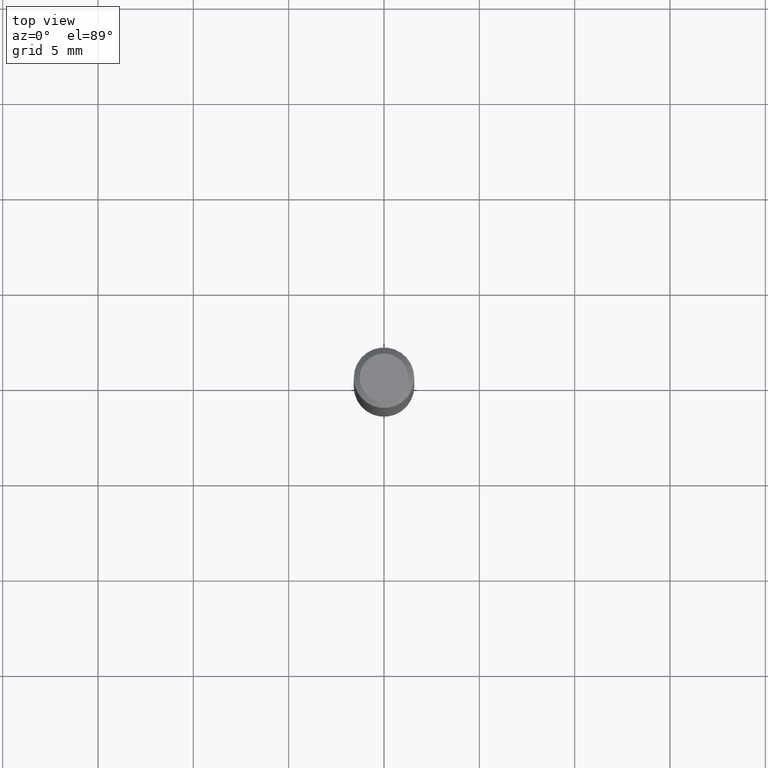
[diagram: clean part render]
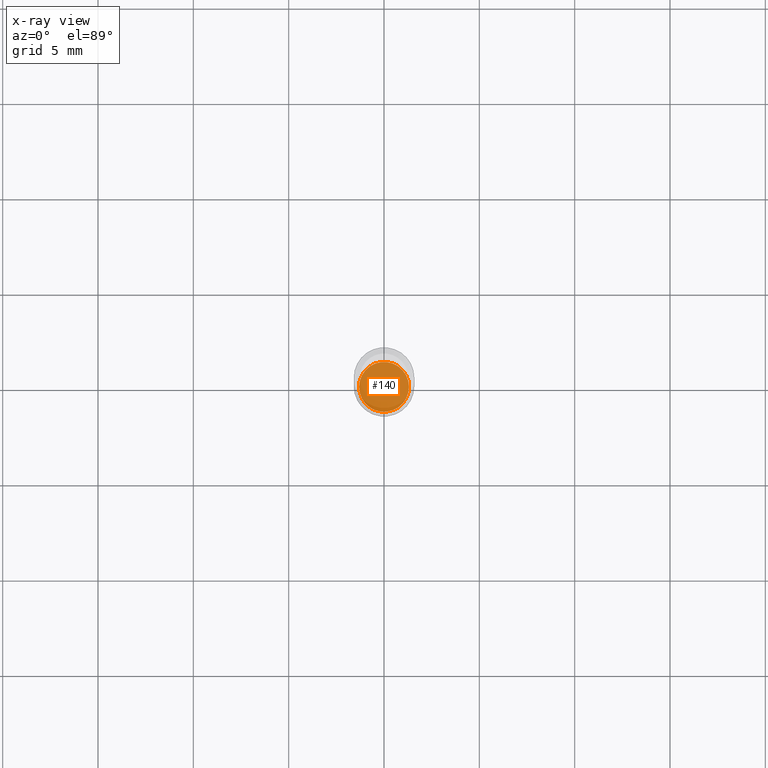
[diagram: x-ray — body ghosted, one internal face saturated and labeled with its STEP entity id]
A machine part, top view, then the same camera in x-ray: the body is ghosted and one INTERNAL B-rep face — a face not visible from any outside direction — is saturated and labeled: STEP entity #140.
In plain terms, the highlighted planar face has unit normal (-0, 0, 1).
Its self-contained STEP definition (entity closure, byte-faithful):
#6 = DIRECTION ( 'NONE',  ( -2.438088387897960049E-29, 3.491481338843145188E-15, 1.000000000000000000 ) ) ;
#45 = CARTESIAN_POINT ( 'NONE',  ( 2.690015686803650369E-29, -3.840629472727460101E-15, -1.100000000000000089 ) ) ;
#60 = VERTEX_POINT ( 'NONE', #286 ) ;
#61 = DIRECTION ( 'NONE',  ( -2.445468806185136597E-29, 3.491481338843145583E-15, 1.000000000000000000 ) ) ;
#66 = VERTEX_POINT ( 'NONE', #181 ) ;
#98 = EDGE_LOOP ( 'NONE', ( #123, #238 ) ) ;
#101 = DIRECTION ( 'NONE',  ( 1.000000000000000000, -6.982962677686268288E-15, 0.000000000000000000 ) ) ;
#105 = CIRCLE ( 'NONE', #208, 0.05149999999999999023 ) ;
#108 = AXIS2_PLACEMENT_3D ( 'NONE', #268, #6, #447 ) ;
#123 = ORIENTED_EDGE ( 'NONE', *, *, #271, .F. ) ;
#140 = ADVANCED_FACE ( 'NONE', ( #266 ), #299, .F. ) ;
#181 = CARTESIAN_POINT ( 'NONE',  ( 0.05149999999999999023, -4.200252050628303247E-15, -1.100000000000000089 ) ) ;
#183 = AXIS2_PLACEMENT_3D ( 'NONE', #213, #61, #101 ) ;
#208 = AXIS2_PLACEMENT_3D ( 'NONE', #45, #233, #348 ) ;
#213 = CARTESIAN_POINT ( 'NONE',  ( 2.690015686803650369E-29, -3.840629472727460101E-15, -1.100000000000000089 ) ) ;
#233 = DIRECTION ( 'NONE',  ( -2.445468806185136597E-29, 3.491481338843145583E-15, 1.000000000000000000 ) ) ;
#238 = ORIENTED_EDGE ( 'NONE', *, *, #490, .F. ) ;
#266 = FACE_OUTER_BOUND ( 'NONE', #98, .T. ) ;
#268 = CARTESIAN_POINT ( 'NONE',  ( 2.690015686803650369E-29, -3.840629472727460101E-15, -1.100000000000000089 ) ) ;
#271 = EDGE_CURVE ( 'NONE', #66, #60, #417, .T. ) ;
#286 = CARTESIAN_POINT ( 'NONE',  ( -0.05149999999999999023, -3.472050736636897374E-15, -1.100000000000000089 ) ) ;
#299 = PLANE ( 'NONE',  #108 ) ;
#348 = DIRECTION ( 'NONE',  ( 1.000000000000000000, -6.982962677686268288E-15, 0.000000000000000000 ) ) ;
#417 = CIRCLE ( 'NONE', #183, 0.05149999999999999023 ) ;
#447 = DIRECTION ( 'NONE',  ( 1.000000000000000000, -6.982962677686265922E-15, 4.876176775795935793E-29 ) ) ;
#490 = EDGE_CURVE ( 'NONE', #60, #66, #105, .T. ) ;